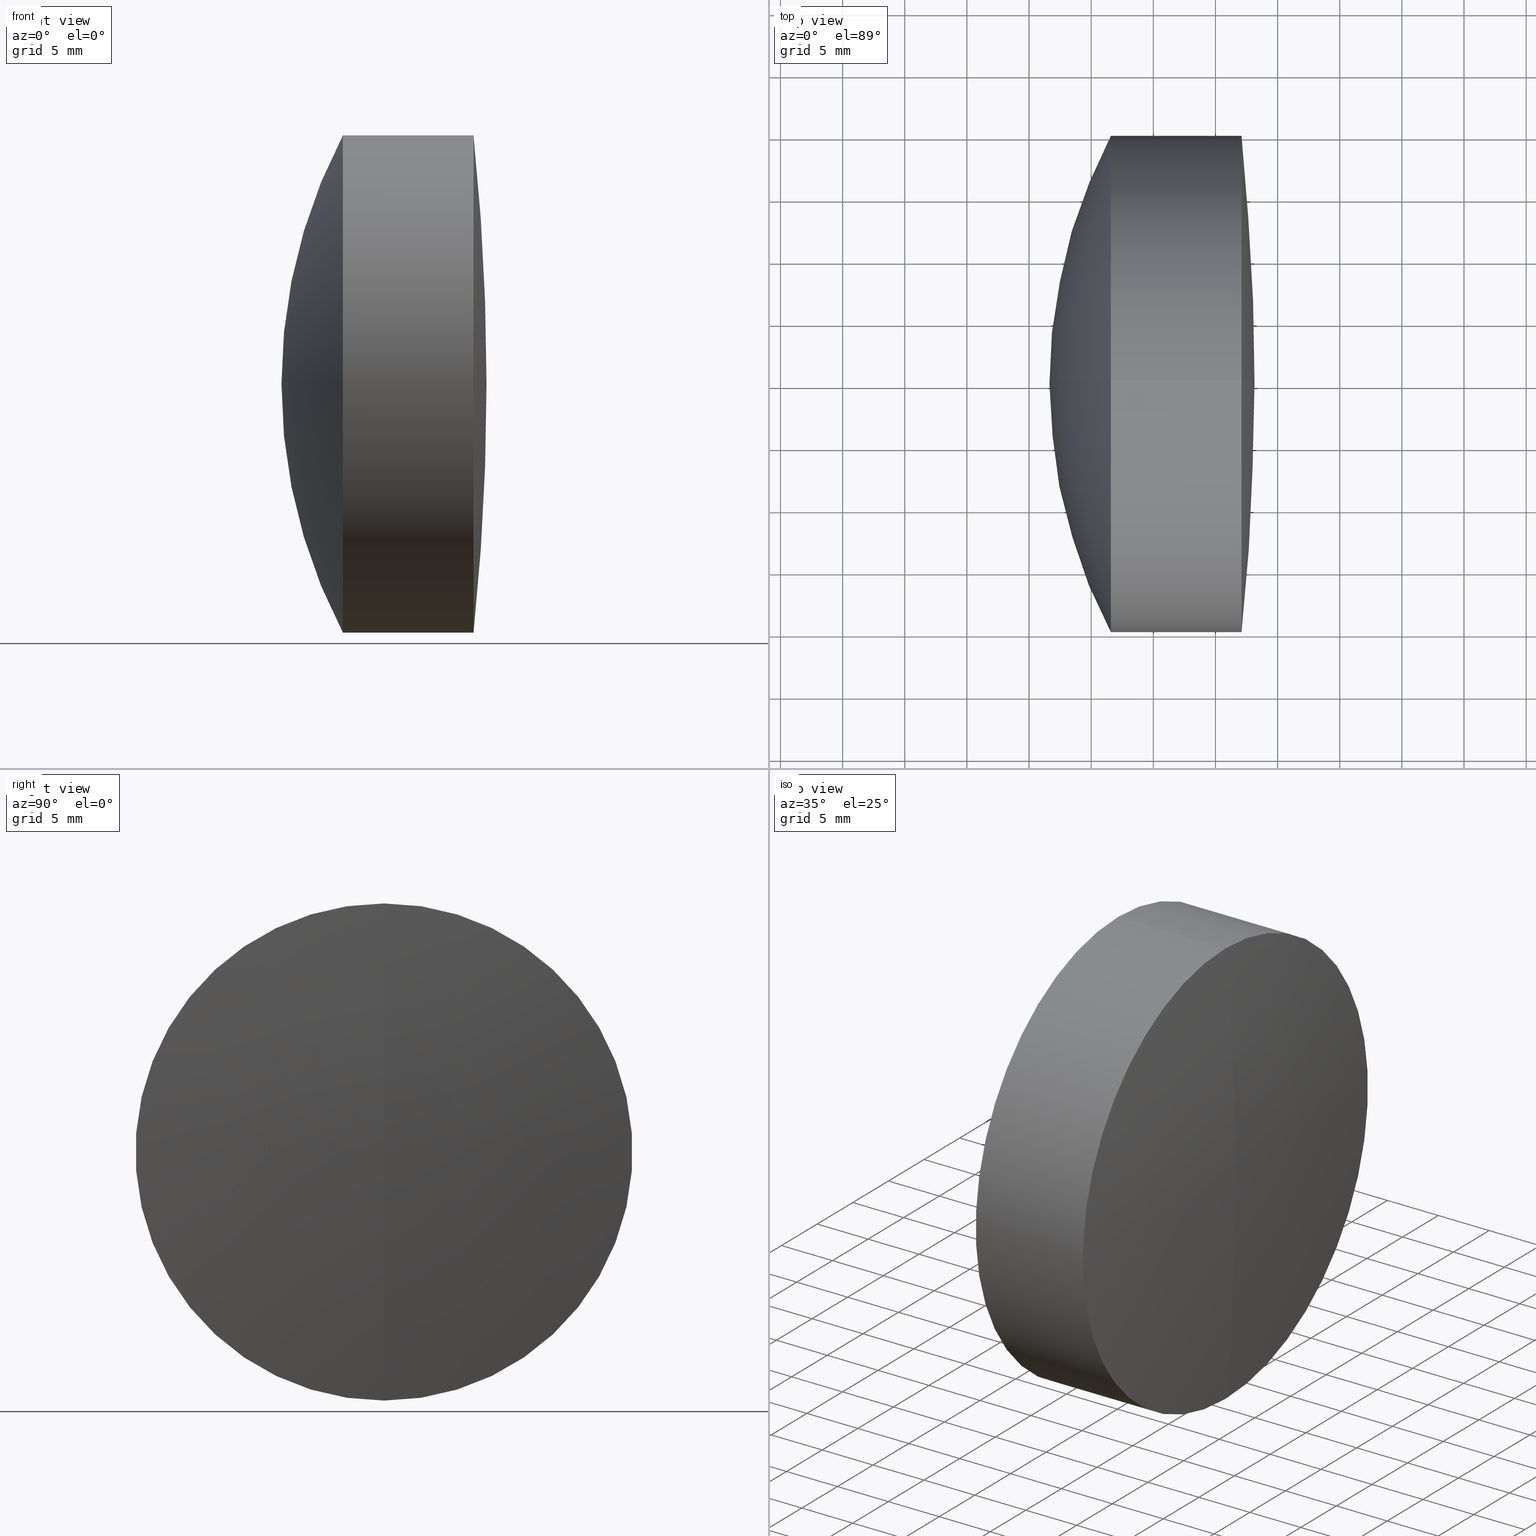
[diagram: canonical four-view strip — front | top / right | iso, engineering-drawing reading convention]
A machine part, canonical four-view strip (front | top / right | iso — engineering-drawing reading convention). The complete STEP part file that produces these views, byte-faithful:
ISO-10303-21;
HEADER;
FILE_DESCRIPTION (( 'STEP AP214' ),
    '1' );
FILE_NAME ('145072.STEP',
    '2019-05-15T05:49:44',
    ( 'user' ),
    ( '΢���й�' ),
    'SwSTEP 2.0',
    'SolidWorks 2016',
    '' );
FILE_SCHEMA (( 'AUTOMOTIVE_DESIGN' ));
ENDSEC;

DATA;
#1 = DIRECTION ( 'NONE',  ( 0.0000000000000000000, 0.0000000000000000000, 1.000000000000000000 ) ) ;
#2 = ORIENTED_EDGE ( 'NONE', *, *, #11, .T. ) ;
#3 = DIRECTION ( 'NONE',  ( 0.0000000000000000000, 0.0000000000000000000, 1.000000000000000000 ) ) ;
#4 = AXIS2_PLACEMENT_3D ( 'NONE', #209, #155, #242 ) ;
#5 =( NAMED_UNIT ( * ) PLANE_ANGLE_UNIT ( ) SI_UNIT ( $, .RADIAN. ) );
#6 = FILL_AREA_STYLE_COLOUR ( '', #295 ) ;
#7 = SURFACE_SIDE_STYLE ('',( #214 ) ) ;
#8 = EDGE_LOOP ( 'NONE', ( #19, #302, #111 ) ) ;
#9 = DIRECTION ( 'NONE',  ( 0.0000000000000000000, -1.224646799147353200E-016, 1.000000000000000000 ) ) ;
#10 = ORIENTED_EDGE ( 'NONE', *, *, #14, .F. ) ;
#11 = EDGE_CURVE ( 'NONE', #227, #95, #82, .T. ) ;
#12 = CIRCLE ( 'NONE', #266, 42.94999999999998200 ) ;
#13 = ORIENTED_EDGE ( 'NONE', *, *, #67, .T. ) ;
#14 = EDGE_CURVE ( 'NONE', #141, #180, #23, .T. ) ;
#15 = SURFACE_STYLE_FILL_AREA ( #275 ) ;
#16 = ORIENTED_EDGE ( 'NONE', *, *, #338, .F. ) ;
#17 = DIRECTION ( 'NONE',  ( 0.0000000000000000000, 0.0000000000000000000, 1.000000000000000000 ) ) ;
#18 = CIRCLE ( 'NONE', #172, 19.99999999999998900 ) ;
#19 = ORIENTED_EDGE ( 'NONE', *, *, #11, .F. ) ;
#20 = ADVANCED_FACE ( 'NONE', ( #38 ), #115, .T. ) ;
#21 = SURFACE_STYLE_USAGE ( .BOTH. , #7 ) ;
#22 = AXIS2_PLACEMENT_3D ( 'NONE', #299, #296, #287 ) ;
#23 = CIRCLE ( 'NONE', #45, 191.8700000000000000 ) ;
#24 = DIRECTION ( 'NONE',  ( -1.000000000000000000, -0.0000000000000000000, -0.0000000000000000000 ) ) ;
#25 = SHAPE_DEFINITION_REPRESENTATION ( #328, #153 ) ;
#26 = APPLICATION_CONTEXT ( 'automotive_design' ) ;
#27 = CARTESIAN_POINT ( 'NONE',  ( 230.0841532013300500, 0.0000000000000000000, 7.363275505057532400E-015 ) ) ;
#28 = AXIS2_PLACEMENT_3D ( 'NONE', #167, #267, #185 ) ;
#29 = VERTEX_POINT ( 'NONE', #194 ) ;
#30 = DIRECTION ( 'NONE',  ( -0.0000000000000000000, 1.000000000000000000, 1.224646799147353200E-016 ) ) ;
#31 =( LENGTH_UNIT ( ) NAMED_UNIT ( * ) SI_UNIT ( .MILLI., .METRE. ) );
#32 = DIRECTION ( 'NONE',  ( -1.000000000000000000, -0.0000000000000000000, -0.0000000000000000000 ) ) ;
#33 = MANIFOLD_SOLID_BREP ( '��ת3', #230 ) ;
#34 = DIRECTION ( 'NONE',  ( 0.0000000000000000000, 0.0000000000000000000, 1.000000000000000000 ) ) ;
#35 = EDGE_CURVE ( 'NONE', #84, #29, #105, .T. ) ;
#36 = ORIENTED_EDGE ( 'NONE', *, *, #104, .T. ) ;
#37 = CARTESIAN_POINT ( 'NONE',  ( 265.6441532013300800, 0.0000000000000000000, 9.540697513941529600E-015 ) ) ;
#38 = FACE_OUTER_BOUND ( 'NONE', #170, .T. ) ;
#39 = SURFACE_STYLE_USAGE ( .BOTH. , #253 ) ;
#40 = ORIENTED_EDGE ( 'NONE', *, *, #219, .F. ) ;
#41 = FACE_OUTER_BOUND ( 'NONE', #163, .T. ) ;
#42 = DIRECTION ( 'NONE',  ( -1.000000000000000000, -0.0000000000000000000, -0.0000000000000000000 ) ) ;
#43 =( GEOMETRIC_REPRESENTATION_CONTEXT ( 3 ) GLOBAL_UNCERTAINTY_ASSIGNED_CONTEXT ( ( #281 ) ) GLOBAL_UNIT_ASSIGNED_CONTEXT ( ( #310, #257, #251 ) ) REPRESENTATION_CONTEXT ( 'NONE', 'WORKASPACE' ) );
#44 = VERTEX_POINT ( 'NONE', #283 ) ;
#45 = AXIS2_PLACEMENT_3D ( 'NONE', #290, #317, #220 ) ;
#46 = DIRECTION ( 'NONE',  ( 1.000000000000000000, 0.0000000000000000000, 0.0000000000000000000 ) ) ;
#47 = ADVANCED_FACE ( 'NONE', ( #77 ), #288, .F. ) ;
#48 = FACE_OUTER_BOUND ( 'NONE', #70, .T. ) ;
#49 = CIRCLE ( 'NONE', #212, 20.00000000000002100 ) ;
#50 = ORIENTED_EDGE ( 'NONE', *, *, #338, .T. ) ;
#51 = EDGE_CURVE ( 'NONE', #180, #125, #18, .T. ) ;
#52 = DIRECTION ( 'NONE',  ( 0.0000000000000000000, -1.000000000000000000, -1.224646799147353200E-016 ) ) ;
#53 = AXIS2_PLACEMENT_3D ( 'NONE', #27, #241, #9 ) ;
#54 = EDGE_LOOP ( 'NONE', ( #271, #201, #97 ) ) ;
#55 = DIRECTION ( 'NONE',  ( -1.000000000000000000, -0.0000000000000000000, -0.0000000000000000000 ) ) ;
#56 = FACE_OUTER_BOUND ( 'NONE', #339, .T. ) ;
#57 = FACE_OUTER_BOUND ( 'NONE', #54, .T. ) ;
#58 = ORIENTED_EDGE ( 'NONE', *, *, #324, .T. ) ;
#59 = CARTESIAN_POINT ( 'NONE',  ( 124.5233095260452400, 0.0000000000000000000, 0.0000000000000000000 ) ) ;
#60 = SURFACE_SIDE_STYLE ('',( #15 ) ) ;
#61 = CARTESIAN_POINT ( 'NONE',  ( 268.1441532013300800, 0.0000000000000000000, 1.174864906762013400E-014 ) ) ;
#62 = DIRECTION ( 'NONE',  ( 0.0000000000000000000, 1.000000000000000000, 0.0000000000000000000 ) ) ;
#63 = AXIS2_PLACEMENT_3D ( 'NONE', #215, #129, #263 ) ;
#64 = DIRECTION ( 'NONE',  ( 0.0000000000000000000, 0.0000000000000000000, 1.000000000000000000 ) ) ;
#65 = EDGE_CURVE ( 'NONE', #179, #255, #294, .T. ) ;
#66 = EDGE_LOOP ( 'NONE', ( #276, #110, #342, #262 ) ) ;
#67 = EDGE_CURVE ( 'NONE', #29, #179, #218, .T. ) ;
#68 = AXIS2_PLACEMENT_3D ( 'NONE', #59, #139, #282 ) ;
#69 = CARTESIAN_POINT ( 'NONE',  ( 230.0841532013300500, 0.0000000000000000000, 7.363275505057532400E-015 ) ) ;
#70 = EDGE_LOOP ( 'NONE', ( #36, #13, #211, #235 ) ) ;
#71 = LINE ( 'NONE', #109, #232 ) ;
#72 = ADVANCED_FACE ( 'NONE', ( #48 ), #246, .T. ) ;
#73 = CYLINDRICAL_SURFACE ( 'NONE', #4, 20.00000000000000700 ) ;
#74 = SPHERICAL_SURFACE ( 'NONE', #225, 191.8700000000000000 ) ;
#75 = ORIENTED_EDGE ( 'NONE', *, *, #319, .F. ) ;
#76 = STYLED_ITEM ( 'NONE', ( #336 ), #153 ) ;
#77 = FACE_OUTER_BOUND ( 'NONE', #312, .T. ) ;
#78 = DIRECTION ( 'NONE',  ( -1.000000000000000000, -0.0000000000000000000, -0.0000000000000000000 ) ) ;
#79 = DIRECTION ( 'NONE',  ( -1.000000000000000000, -0.0000000000000000000, -0.0000000000000000000 ) ) ;
#80 = AXIS2_PLACEMENT_3D ( 'NONE', #130, #106, #85 ) ;
#81 = EDGE_CURVE ( 'NONE', #227, #149, #145, .T. ) ;
#82 = CIRCLE ( 'NONE', #28, 35.56000000000003800 ) ;
#83 = CARTESIAN_POINT ( 'NONE',  ( 256.5849109042255200, 0.0000000000000000000, -20.00000000000000400 ) ) ;
#84 = VERTEX_POINT ( 'NONE', #37 ) ;
#85 = DIRECTION ( 'NONE',  ( 0.0000000000000000000, 0.0000000000000000000, -1.000000000000000000 ) ) ;
#86 =( NAMED_UNIT ( * ) SI_UNIT ( $, .STERADIAN. ) SOLID_ANGLE_UNIT ( ) );
#87 = EDGE_CURVE ( 'NONE', #125, #149, #320, .T. ) ;
#88 = ORIENTED_EDGE ( 'NONE', *, *, #14, .T. ) ;
#89 = AXIS2_PLACEMENT_3D ( 'NONE', #171, #79, #34 ) ;
#90 = CARTESIAN_POINT ( 'NONE',  ( 76.27415320133005100, 0.0000000000000000000, 0.0000000000000000000 ) ) ;
#91 = DIRECTION ( 'NONE',  ( -1.000000000000000000, -0.0000000000000000000, -0.0000000000000000000 ) ) ;
#92 = ORIENTED_EDGE ( 'NONE', *, *, #51, .F. ) ;
#93 = ORIENTED_EDGE ( 'NONE', *, *, #324, .F. ) ;
#94 = PRESENTATION_LAYER_ASSIGNMENT (  '', '', ( #76 ) ) ;
#95 = VERTEX_POINT ( 'NONE', #301 ) ;
#96 = DIRECTION ( 'NONE',  ( -1.000000000000000000, -0.0000000000000000000, -0.0000000000000000000 ) ) ;
#97 = ORIENTED_EDGE ( 'NONE', *, *, #272, .T. ) ;
#98 = CARTESIAN_POINT ( 'NONE',  ( 124.5233095260452400, 0.0000000000000000000, 20.00000000000000700 ) ) ;
#99 = APPLICATION_PROTOCOL_DEFINITION ( 'draft international standard', 'automotive_design', 1998, #26 ) ;
#100 = ADVANCED_FACE ( 'NONE', ( #174 ), #176, .F. ) ;
#101 = STYLED_ITEM ( 'NONE', ( #168 ), #33 ) ;
#102 = COLOUR_RGB ( '',1.000000000000000000, 1.000000000000000000, 1.000000000000000000 ) ;
#103 = FACE_OUTER_BOUND ( 'NONE', #137, .T. ) ;
#104 = EDGE_CURVE ( 'NONE', #44, #29, #243, .T. ) ;
#105 = CIRCLE ( 'NONE', #63, 35.56000000000003800 ) ;
#106 = DIRECTION ( 'NONE',  ( -0.0000000000000000000, -1.000000000000000000, -0.0000000000000000000 ) ) ;
#107 = AXIS2_PLACEMENT_3D ( 'NONE', #321, #318, #188 ) ;
#108 = DIRECTION ( 'NONE',  ( 0.0000000000000000000, -1.224646799147353200E-016, 1.000000000000000000 ) ) ;
#109 = CARTESIAN_POINT ( 'NONE',  ( -0.5519199926577972300, 0.0000000000000000000, 20.00000000000000400 ) ) ;
#110 = ORIENTED_EDGE ( 'NONE', *, *, #308, .T. ) ;
#111 = ORIENTED_EDGE ( 'NONE', *, *, #200, .T. ) ;
#112 = DIRECTION ( 'NONE',  ( 0.0000000000000000000, 0.0000000000000000000, 1.000000000000000000 ) ) ;
#113 = MANIFOLD_SOLID_BREP ( '��ת1', #254 ) ;
#114 = CARTESIAN_POINT ( 'NONE',  ( 0.0000000000000000000, 0.0000000000000000000, 0.0000000000000000000 ) ) ;
#115 = SPHERICAL_SURFACE ( 'NONE', #80, 42.94999999999998200 ) ;
#116 = MECHANICAL_DESIGN_GEOMETRIC_PRESENTATION_REPRESENTATION (  '', ( #76 ), #128 ) ;
#117 = DIRECTION ( 'NONE',  ( 0.0000000000000000000, 1.000000000000000000, 0.0000000000000000000 ) ) ;
#118 = DIRECTION ( 'NONE',  ( -1.000000000000000000, -0.0000000000000000000, -0.0000000000000000000 ) ) ;
#119 = PRESENTATION_LAYER_ASSIGNMENT (  '', '', ( #101 ) ) ;
#120 = PRODUCT_CONTEXT ( 'NONE', #138, 'mechanical' ) ;
#121 = CARTESIAN_POINT ( 'NONE',  ( 294.5941532013300200, 0.0000000000000000000, 7.363275609329438300E-015 ) ) ;
#122 = ORIENTED_EDGE ( 'NONE', *, *, #65, .T. ) ;
#123 = CIRCLE ( 'NONE', #298, 191.8700000000000000 ) ;
#124 = STYLED_ITEM ( 'NONE', ( #203 ), #113 ) ;
#125 = VERTEX_POINT ( 'NONE', #224 ) ;
#126 = ADVANCED_FACE ( 'NONE', ( #229 ), #333, .T. ) ;
#127 = CIRCLE ( 'NONE', #285, 19.99999999999998900 ) ;
#128 =( GEOMETRIC_REPRESENTATION_CONTEXT ( 3 ) GLOBAL_UNCERTAINTY_ASSIGNED_CONTEXT ( ( #261 ) ) GLOBAL_UNIT_ASSIGNED_CONTEXT ( ( #345, #5, #279 ) ) REPRESENTATION_CONTEXT ( 'NONE', 'WORKASPACE' ) );
#129 = DIRECTION ( 'NONE',  ( -0.0000000000000000000, 1.000000000000000000, 1.224646799147353200E-016 ) ) ;
#130 = CARTESIAN_POINT ( 'NONE',  ( 294.5941532013300200, 0.0000000000000000000, 7.363275609329438300E-015 ) ) ;
#131 = DIRECTION ( 'NONE',  ( 0.0000000000000000000, 1.224646799147353200E-016, -1.000000000000000000 ) ) ;
#132 = ORIENTED_EDGE ( 'NONE', *, *, #87, .F. ) ;
#133 = MECHANICAL_DESIGN_GEOMETRIC_PRESENTATION_REPRESENTATION (  '', ( #101 ), #151 ) ;
#134 = CARTESIAN_POINT ( 'NONE',  ( 259.4867653301869300, 2.449293598294708500E-015, -20.00000000000000700 ) ) ;
#135 = CYLINDRICAL_SURFACE ( 'NONE', #305, 20.00000000000000400 ) ;
#136 = SPHERICAL_SURFACE ( 'NONE', #260, 42.94999999999998200 ) ;
#137 = EDGE_LOOP ( 'NONE', ( #93, #88, #40 ) ) ;
#138 = APPLICATION_CONTEXT ( 'automotive_design' ) ;
#139 = DIRECTION ( 'NONE',  ( -1.000000000000000000, -0.0000000000000000000, -0.0000000000000000000 ) ) ;
#140 = PRESENTATION_LAYER_ASSIGNMENT (  '', '', ( #124 ) ) ;
#141 = VERTEX_POINT ( 'NONE', #61 ) ;
#142 = CARTESIAN_POINT ( 'NONE',  ( 256.5849109042255200, 0.0000000000000000000, 0.0000000000000000000 ) ) ;
#143 = DIRECTION ( 'NONE',  ( 0.0000000000000000000, -1.000000000000000000, 0.0000000000000000000 ) ) ;
#144 = ORIENTED_EDGE ( 'NONE', *, *, #289, .T. ) ;
#145 = CIRCLE ( 'NONE', #53, 35.56000000000003800 ) ;
#146 = APPLICATION_PROTOCOL_DEFINITION ( 'draft international standard', 'automotive_design', 1998, #138 ) ;
#147 = PRODUCT_DEFINITION_CONTEXT ( 'detailed design', #26, 'design' ) ;
#148 = CARTESIAN_POINT ( 'NONE',  ( 230.0841532013300500, 0.0000000000000000000, 7.363275505057532400E-015 ) ) ;
#149 = VERTEX_POINT ( 'NONE', #134 ) ;
#150 = ADVANCED_FACE ( 'NONE', ( #237 ), #259, .T. ) ;
#151 =( GEOMETRIC_REPRESENTATION_CONTEXT ( 3 ) GLOBAL_UNCERTAINTY_ASSIGNED_CONTEXT ( ( #175 ) ) GLOBAL_UNIT_ASSIGNED_CONTEXT ( ( #31, #297, #86 ) ) REPRESENTATION_CONTEXT ( 'NONE', 'WORKASPACE' ) );
#152 = ORIENTED_EDGE ( 'NONE', *, *, #51, .T. ) ;
#153 = ADVANCED_BREP_SHAPE_REPRESENTATION ( '145072', ( #113, #33, #166 ), #43 ) ;
#154 = COLOUR_RGB ( '',1.000000000000000000, 1.000000000000000000, 1.000000000000000000 ) ;
#155 = DIRECTION ( 'NONE',  ( -1.000000000000000000, -0.0000000000000000000, -0.0000000000000000000 ) ) ;
#156 = EDGE_LOOP ( 'NONE', ( #204, #144, #193 ) ) ;
#157 = EDGE_LOOP ( 'NONE', ( #10, #58, #92 ) ) ;
#158 = MECHANICAL_DESIGN_GEOMETRIC_PRESENTATION_REPRESENTATION (  '', ( #124 ), #177 ) ;
#159 = DIRECTION ( 'NONE',  ( 0.0000000000000000000, 0.0000000000000000000, 1.000000000000000000 ) ) ;
#160 =( NAMED_UNIT ( * ) PLANE_ANGLE_UNIT ( ) SI_UNIT ( $, .RADIAN. ) );
#161 = DIRECTION ( 'NONE',  ( 0.0000000000000000000, 1.000000000000000000, 0.0000000000000000000 ) ) ;
#162 = VERTEX_POINT ( 'NONE', #304 ) ;
#163 = EDGE_LOOP ( 'NONE', ( #132, #292, #50, #238 ) ) ;
#164 = DIRECTION ( 'NONE',  ( -1.000000000000000000, -0.0000000000000000000, -0.0000000000000000000 ) ) ;
#165 = DIRECTION ( 'NONE',  ( 0.0000000000000000000, 0.0000000000000000000, 1.000000000000000000 ) ) ;
#166 = AXIS2_PLACEMENT_3D ( 'NONE', #114, #159, #46 ) ;
#167 = CARTESIAN_POINT ( 'NONE',  ( 230.0841532013300500, 0.0000000000000000000, 7.363275505057532400E-015 ) ) ;
#168 = PRESENTATION_STYLE_ASSIGNMENT (( #222 ) ) ;
#169 = DIRECTION ( 'NONE',  ( 0.0000000000000000000, 0.0000000000000000000, -1.000000000000000000 ) ) ;
#170 = EDGE_LOOP ( 'NONE', ( #122, #330, #306 ) ) ;
#171 = CARTESIAN_POINT ( 'NONE',  ( 259.4867653301869300, 0.0000000000000000000, 0.0000000000000000000 ) ) ;
#172 = AXIS2_PLACEMENT_3D ( 'NONE', #265, #164, #293 ) ;
#173 = ORIENTED_EDGE ( 'NONE', *, *, #35, .T. ) ;
#174 = FACE_OUTER_BOUND ( 'NONE', #8, .T. ) ;
#175 = UNCERTAINTY_MEASURE_WITH_UNIT (LENGTH_MEASURE( 1.000000000000000100E-005 ), #31, 'distance_accuracy_value', 'NONE');
#176 = SPHERICAL_SURFACE ( 'NONE', #107, 35.56000000000003800 ) ;
#177 =( GEOMETRIC_REPRESENTATION_CONTEXT ( 3 ) GLOBAL_UNCERTAINTY_ASSIGNED_CONTEXT ( ( #181 ) ) GLOBAL_UNIT_ASSIGNED_CONTEXT ( ( #247, #160, #239 ) ) REPRESENTATION_CONTEXT ( 'NONE', 'WORKASPACE' ) );
#178 = ADVANCED_FACE ( 'NONE', ( #56 ), #341, .T. ) ;
#179 = VERTEX_POINT ( 'NONE', #83 ) ;
#180 = VERTEX_POINT ( 'NONE', #226 ) ;
#181 = UNCERTAINTY_MEASURE_WITH_UNIT (LENGTH_MEASURE( 1.000000000000000100E-005 ), #247, 'distance_accuracy_value', 'NONE');
#182 = PRODUCT_DEFINITION ( 'δ֪', '', #202, #147 ) ;
#183 = FACE_OUTER_BOUND ( 'NONE', #66, .T. ) ;
#184 = CARTESIAN_POINT ( 'NONE',  ( 267.0989338248119800, 0.0000000000000000000, 0.0000000000000000000 ) ) ;
#185 = DIRECTION ( 'NONE',  ( 0.0000000000000000000, 0.0000000000000000000, -1.000000000000000000 ) ) ;
#186 = FILL_AREA_STYLE_COLOUR ( '', #102 ) ;
#187 = ORIENTED_EDGE ( 'NONE', *, *, #81, .F. ) ;
#188 = DIRECTION ( 'NONE',  ( 0.0000000000000000000, 0.0000000000000000000, 1.000000000000000000 ) ) ;
#189 = AXIS2_PLACEMENT_3D ( 'NONE', #244, #62, #223 ) ;
#190 = DIRECTION ( 'NONE',  ( 0.0000000000000000000, 0.0000000000000000000, -1.000000000000000000 ) ) ;
#191 = VECTOR ( 'NONE', #118, 1000.000000000000000 ) ;
#192 = FILL_AREA_STYLE ('',( #6 ) ) ;
#193 = ORIENTED_EDGE ( 'NONE', *, *, #308, .F. ) ;
#194 = CARTESIAN_POINT ( 'NONE',  ( 259.4867653301869300, 2.449293598294707300E-015, -20.00000000000000700 ) ) ;
#195 = CARTESIAN_POINT ( 'NONE',  ( -0.5519199926577972300, 0.0000000000000000000, 0.0000000000000000000 ) ) ;
#196 = AXIS2_PLACEMENT_3D ( 'NONE', #148, #326, #3 ) ;
#197 = DIRECTION ( 'NONE',  ( 0.0000000000000000000, 0.0000000000000000000, 1.000000000000000000 ) ) ;
#198 = CARTESIAN_POINT ( 'NONE',  ( 265.6441532013300800, 0.0000000000000000000, 9.540697513941529600E-015 ) ) ;
#199 = CIRCLE ( 'NONE', #335, 20.00000000000002100 ) ;
#200 = EDGE_CURVE ( 'NONE', #149, #95, #49, .T. ) ;
#201 = ORIENTED_EDGE ( 'NONE', *, *, #343, .T. ) ;
#202 = PRODUCT_DEFINITION_FORMATION_WITH_SPECIFIED_SOURCE ( '�κ�', '', #258, .NOT_KNOWN. ) ;
#203 = PRESENTATION_STYLE_ASSIGNMENT (( #39 ) ) ;
#204 = ORIENTED_EDGE ( 'NONE', *, *, #35, .F. ) ;
#205 = ADVANCED_FACE ( 'NONE', ( #41 ), #135, .T. ) ;
#206 = AXIS2_PLACEMENT_3D ( 'NONE', #142, #32, #240 ) ;
#207 = SPHERICAL_SURFACE ( 'NONE', #315, 191.8700000000000000 ) ;
#208 = ORIENTED_EDGE ( 'NONE', *, *, #87, .T. ) ;
#209 = CARTESIAN_POINT ( 'NONE',  ( 124.5233095260452400, 0.0000000000000000000, 0.0000000000000000000 ) ) ;
#210 = DIRECTION ( 'NONE',  ( 0.0000000000000000000, 0.0000000000000000000, 1.000000000000000000 ) ) ;
#211 = ORIENTED_EDGE ( 'NONE', *, *, #343, .F. ) ;
#212 = AXIS2_PLACEMENT_3D ( 'NONE', #270, #91, #165 ) ;
#213 = CARTESIAN_POINT ( 'NONE',  ( 294.5941532013300200, 0.0000000000000000000, 7.363275609329438300E-015 ) ) ;
#214 = SURFACE_STYLE_FILL_AREA ( #291 ) ;
#215 = CARTESIAN_POINT ( 'NONE',  ( 230.0841532013300500, 0.0000000000000000000, 7.363275505057532400E-015 ) ) ;
#216 = FACE_OUTER_BOUND ( 'NONE', #157, .T. ) ;
#217 = CARTESIAN_POINT ( 'NONE',  ( 294.5941532013300200, 0.0000000000000000000, 7.363275609329438300E-015 ) ) ;
#218 = LINE ( 'NONE', #231, #334 ) ;
#219 = EDGE_CURVE ( 'NONE', #125, #180, #127, .T. ) ;
#220 = DIRECTION ( 'NONE',  ( 0.0000000000000000000, 0.0000000000000000000, -1.000000000000000000 ) ) ;
#221 = PRODUCT_RELATED_PRODUCT_CATEGORY ( 'part', '', ( #258 ) ) ;
#222 = SURFACE_STYLE_USAGE ( .BOTH. , #60 ) ;
#223 = DIRECTION ( 'NONE',  ( 0.0000000000000000000, 0.0000000000000000000, 1.000000000000000000 ) ) ;
#224 = CARTESIAN_POINT ( 'NONE',  ( 267.0989338248119800, 2.449293598294706100E-015, -19.99999999999998900 ) ) ;
#225 = AXIS2_PLACEMENT_3D ( 'NONE', #309, #248, #112 ) ;
#226 = CARTESIAN_POINT ( 'NONE',  ( 267.0989338248119800, 0.0000000000000000000, 19.99999999999998900 ) ) ;
#227 = VERTEX_POINT ( 'NONE', #198 ) ;
#228 = AXIS2_PLACEMENT_3D ( 'NONE', #121, #269, #1 ) ;
#229 = FACE_OUTER_BOUND ( 'NONE', #313, .T. ) ;
#230 = CLOSED_SHELL ( 'NONE', ( #233, #126, #100, #47, #205, #311 ) ) ;
#231 = CARTESIAN_POINT ( 'NONE',  ( 124.5233095260452400, 2.449293598294707300E-015, -20.00000000000000700 ) ) ;
#232 = VECTOR ( 'NONE', #78, 1000.000000000000000 ) ;
#233 = ADVANCED_FACE ( 'NONE', ( #216 ), #74, .T. ) ;
#234 = AXIS2_PLACEMENT_3D ( 'NONE', #327, #250, #64 ) ;
#235 = ORIENTED_EDGE ( 'NONE', *, *, #236, .F. ) ;
#236 = EDGE_CURVE ( 'NONE', #44, #255, #323, .T. ) ;
#237 = FACE_OUTER_BOUND ( 'NONE', #156, .T. ) ;
#238 = ORIENTED_EDGE ( 'NONE', *, *, #200, .F. ) ;
#239 =( NAMED_UNIT ( * ) SI_UNIT ( $, .STERADIAN. ) SOLID_ANGLE_UNIT ( ) );
#240 = DIRECTION ( 'NONE',  ( 0.0000000000000000000, 0.0000000000000000000, 1.000000000000000000 ) ) ;
#241 = DIRECTION ( 'NONE',  ( -0.0000000000000000000, 1.000000000000000000, 1.224646799147353200E-016 ) ) ;
#242 = DIRECTION ( 'NONE',  ( 0.0000000000000000000, 0.0000000000000000000, 1.000000000000000000 ) ) ;
#243 = CIRCLE ( 'NONE', #89, 20.00000000000000700 ) ;
#244 = CARTESIAN_POINT ( 'NONE',  ( 230.0841532013300500, 0.0000000000000000000, 7.363275505057532400E-015 ) ) ;
#245 = AXIS2_PLACEMENT_3D ( 'NONE', #277, #143, #169 ) ;
#246 = CYLINDRICAL_SURFACE ( 'NONE', #68, 20.00000000000000700 ) ;
#247 =( LENGTH_UNIT ( ) NAMED_UNIT ( * ) SI_UNIT ( .MILLI., .METRE. ) );
#248 = DIRECTION ( 'NONE',  ( 0.0000000000000000000, 1.000000000000000000, 0.0000000000000000000 ) ) ;
#249 = AXIS2_PLACEMENT_3D ( 'NONE', #69, #161, #210 ) ;
#250 = DIRECTION ( 'NONE',  ( -1.000000000000000000, -0.0000000000000000000, -0.0000000000000000000 ) ) ;
#251 =( NAMED_UNIT ( * ) SI_UNIT ( $, .STERADIAN. ) SOLID_ANGLE_UNIT ( ) );
#252 = EDGE_CURVE ( 'NONE', #255, #162, #12, .T. ) ;
#253 = SURFACE_SIDE_STYLE ('',( #344 ) ) ;
#254 = CLOSED_SHELL ( 'NONE', ( #178, #72, #20, #286, #314, #150 ) ) ;
#255 = VERTEX_POINT ( 'NONE', #332 ) ;
#256 = CARTESIAN_POINT ( 'NONE',  ( 259.4867653301869300, 0.0000000000000000000, 0.0000000000000000000 ) ) ;
#257 =( NAMED_UNIT ( * ) PLANE_ANGLE_UNIT ( ) SI_UNIT ( $, .RADIAN. ) );
#258 = PRODUCT ( '145072', '145072', '', ( #120 ) ) ;
#259 = SPHERICAL_SURFACE ( 'NONE', #196, 35.56000000000003800 ) ;
#260 = AXIS2_PLACEMENT_3D ( 'NONE', #217, #347, #190 ) ;
#261 = UNCERTAINTY_MEASURE_WITH_UNIT (LENGTH_MEASURE( 1.000000000000000100E-005 ), #345, 'distance_accuracy_value', 'NONE');
#262 = ORIENTED_EDGE ( 'NONE', *, *, #65, .F. ) ;
#263 = DIRECTION ( 'NONE',  ( 0.0000000000000000000, -1.224646799147353200E-016, 1.000000000000000000 ) ) ;
#264 = DIRECTION ( 'NONE',  ( 0.0000000000000000000, 0.0000000000000000000, 1.000000000000000000 ) ) ;
#265 = CARTESIAN_POINT ( 'NONE',  ( 267.0989338248119800, 0.0000000000000000000, 0.0000000000000000000 ) ) ;
#266 = AXIS2_PLACEMENT_3D ( 'NONE', #213, #52, #131 ) ;
#267 = DIRECTION ( 'NONE',  ( 0.0000000000000000000, -1.000000000000000000, 0.0000000000000000000 ) ) ;
#268 = DIRECTION ( 'NONE',  ( -1.000000000000000000, -0.0000000000000000000, -0.0000000000000000000 ) ) ;
#269 = DIRECTION ( 'NONE',  ( 0.0000000000000000000, 1.000000000000000000, -0.0000000000000000000 ) ) ;
#270 = CARTESIAN_POINT ( 'NONE',  ( 259.4867653301869300, 0.0000000000000000000, 0.0000000000000000000 ) ) ;
#271 = ORIENTED_EDGE ( 'NONE', *, *, #252, .F. ) ;
#272 = EDGE_CURVE ( 'NONE', #179, #162, #340, .T. ) ;
#273 = CIRCLE ( 'NONE', #245, 35.56000000000003800 ) ;
#274 = DIRECTION ( 'NONE',  ( 0.0000000000000000000, 0.0000000000000000000, 1.000000000000000000 ) ) ;
#275 = FILL_AREA_STYLE ('',( #186 ) ) ;
#276 = ORIENTED_EDGE ( 'NONE', *, *, #67, .F. ) ;
#277 = CARTESIAN_POINT ( 'NONE',  ( 230.0841532013300500, 0.0000000000000000000, 7.363275505057532400E-015 ) ) ;
#278 = VECTOR ( 'NONE', #96, 1000.000000000000000 ) ;
#279 =( NAMED_UNIT ( * ) SI_UNIT ( $, .STERADIAN. ) SOLID_ANGLE_UNIT ( ) );
#280 = AXIS2_PLACEMENT_3D ( 'NONE', #322, #55, #17 ) ;
#281 = UNCERTAINTY_MEASURE_WITH_UNIT (LENGTH_MEASURE( 1.000000000000000100E-005 ), #310, 'distance_accuracy_value', 'NONE');
#282 = DIRECTION ( 'NONE',  ( 0.0000000000000000000, 0.0000000000000000000, 1.000000000000000000 ) ) ;
#283 = CARTESIAN_POINT ( 'NONE',  ( 259.4867653301869300, 0.0000000000000000000, 20.00000000000000700 ) ) ;
#284 = ORIENTED_EDGE ( 'NONE', *, *, #104, .F. ) ;
#285 = AXIS2_PLACEMENT_3D ( 'NONE', #184, #24, #346 ) ;
#286 = ADVANCED_FACE ( 'NONE', ( #57 ), #136, .T. ) ;
#287 = DIRECTION ( 'NONE',  ( 0.0000000000000000000, 0.0000000000000000000, 1.000000000000000000 ) ) ;
#288 = SPHERICAL_SURFACE ( 'NONE', #189, 35.56000000000003800 ) ;
#289 = EDGE_CURVE ( 'NONE', #84, #44, #273, .T. ) ;
#290 = CARTESIAN_POINT ( 'NONE',  ( 76.27415320133005100, 0.0000000000000000000, 0.0000000000000000000 ) ) ;
#291 = FILL_AREA_STYLE ('',( #307 ) ) ;
#292 = ORIENTED_EDGE ( 'NONE', *, *, #219, .T. ) ;
#293 = DIRECTION ( 'NONE',  ( 0.0000000000000000000, 0.0000000000000000000, 1.000000000000000000 ) ) ;
#294 = CIRCLE ( 'NONE', #206, 20.00000000000000700 ) ;
#295 = COLOUR_RGB ( '',1.000000000000000000, 1.000000000000000000, 1.000000000000000000 ) ;
#296 = DIRECTION ( 'NONE',  ( -1.000000000000000000, -0.0000000000000000000, -0.0000000000000000000 ) ) ;
#297 =( NAMED_UNIT ( * ) PLANE_ANGLE_UNIT ( ) SI_UNIT ( $, .RADIAN. ) );
#298 = AXIS2_PLACEMENT_3D ( 'NONE', #325, #30, #108 ) ;
#299 = CARTESIAN_POINT ( 'NONE',  ( 256.5849109042255200, 0.0000000000000000000, 0.0000000000000000000 ) ) ;
#300 = CIRCLE ( 'NONE', #280, 20.00000000000000700 ) ;
#301 = CARTESIAN_POINT ( 'NONE',  ( 259.4867653301869300, 0.0000000000000000000, 20.00000000000001400 ) ) ;
#302 = ORIENTED_EDGE ( 'NONE', *, *, #81, .T. ) ;
#303 = CIRCLE ( 'NONE', #22, 20.00000000000000700 ) ;
#304 = CARTESIAN_POINT ( 'NONE',  ( 251.6441532013300600, 0.0000000000000000000, 4.733346608160498000E-015 ) ) ;
#305 = AXIS2_PLACEMENT_3D ( 'NONE', #195, #268, #197 ) ;
#306 = ORIENTED_EDGE ( 'NONE', *, *, #272, .F. ) ;
#307 = FILL_AREA_STYLE_COLOUR ( '', #154 ) ;
#308 = EDGE_CURVE ( 'NONE', #29, #44, #300, .T. ) ;
#309 = CARTESIAN_POINT ( 'NONE',  ( 76.27415320133005100, 0.0000000000000000000, 0.0000000000000000000 ) ) ;
#310 =( LENGTH_UNIT ( ) NAMED_UNIT ( * ) SI_UNIT ( .MILLI., .METRE. ) );
#311 = ADVANCED_FACE ( 'NONE', ( #103 ), #207, .T. ) ;
#312 = EDGE_LOOP ( 'NONE', ( #187, #2, #316 ) ) ;
#313 = EDGE_LOOP ( 'NONE', ( #152, #208, #75, #16 ) ) ;
#314 = ADVANCED_FACE ( 'NONE', ( #183 ), #73, .T. ) ;
#315 = AXIS2_PLACEMENT_3D ( 'NONE', #90, #117, #274 ) ;
#316 = ORIENTED_EDGE ( 'NONE', *, *, #319, .T. ) ;
#317 = DIRECTION ( 'NONE',  ( 0.0000000000000000000, -1.000000000000000000, 0.0000000000000000000 ) ) ;
#318 = DIRECTION ( 'NONE',  ( 0.0000000000000000000, 1.000000000000000000, 0.0000000000000000000 ) ) ;
#319 = EDGE_CURVE ( 'NONE', #95, #149, #199, .T. ) ;
#320 = LINE ( 'NONE', #337, #278 ) ;
#321 = CARTESIAN_POINT ( 'NONE',  ( 230.0841532013300500, 0.0000000000000000000, 7.363275505057532400E-015 ) ) ;
#322 = CARTESIAN_POINT ( 'NONE',  ( 259.4867653301869300, 0.0000000000000000000, 0.0000000000000000000 ) ) ;
#323 = LINE ( 'NONE', #98, #191 ) ;
#324 = EDGE_CURVE ( 'NONE', #141, #125, #123, .T. ) ;
#325 = CARTESIAN_POINT ( 'NONE',  ( 76.27415320133005100, 0.0000000000000000000, 0.0000000000000000000 ) ) ;
#326 = DIRECTION ( 'NONE',  ( 0.0000000000000000000, 1.000000000000000000, 0.0000000000000000000 ) ) ;
#327 = CARTESIAN_POINT ( 'NONE',  ( -0.5519199926577972300, 0.0000000000000000000, 0.0000000000000000000 ) ) ;
#328 = PRODUCT_DEFINITION_SHAPE ( 'NONE', 'NONE',  #182 ) ;
#329 = DIRECTION ( 'NONE',  ( -1.000000000000000000, -0.0000000000000000000, -0.0000000000000000000 ) ) ;
#330 = ORIENTED_EDGE ( 'NONE', *, *, #252, .T. ) ;
#331 = ORIENTED_EDGE ( 'NONE', *, *, #289, .F. ) ;
#332 = CARTESIAN_POINT ( 'NONE',  ( 256.5849109042255200, -2.449293598294706500E-015, 20.00000000000001100 ) ) ;
#333 = CYLINDRICAL_SURFACE ( 'NONE', #234, 20.00000000000000400 ) ;
#334 = VECTOR ( 'NONE', #329, 1000.000000000000000 ) ;
#335 = AXIS2_PLACEMENT_3D ( 'NONE', #256, #42, #264 ) ;
#336 = PRESENTATION_STYLE_ASSIGNMENT (( #21 ) ) ;
#337 = CARTESIAN_POINT ( 'NONE',  ( -0.5519199926577972300, 2.449293598294706900E-015, -20.00000000000000400 ) ) ;
#338 = EDGE_CURVE ( 'NONE', #180, #95, #71, .T. ) ;
#339 = EDGE_LOOP ( 'NONE', ( #331, #173, #284 ) ) ;
#340 = CIRCLE ( 'NONE', #228, 42.94999999999998200 ) ;
#341 = SPHERICAL_SURFACE ( 'NONE', #249, 35.56000000000003800 ) ;
#342 = ORIENTED_EDGE ( 'NONE', *, *, #236, .T. ) ;
#343 = EDGE_CURVE ( 'NONE', #255, #179, #303, .T. ) ;
#344 = SURFACE_STYLE_FILL_AREA ( #192 ) ;
#345 =( LENGTH_UNIT ( ) NAMED_UNIT ( * ) SI_UNIT ( .MILLI., .METRE. ) );
#346 = DIRECTION ( 'NONE',  ( 0.0000000000000000000, 0.0000000000000000000, 1.000000000000000000 ) ) ;
#347 = DIRECTION ( 'NONE',  ( -0.0000000000000000000, -1.000000000000000000, -0.0000000000000000000 ) ) ;
ENDSEC;
END-ISO-10303-21;
